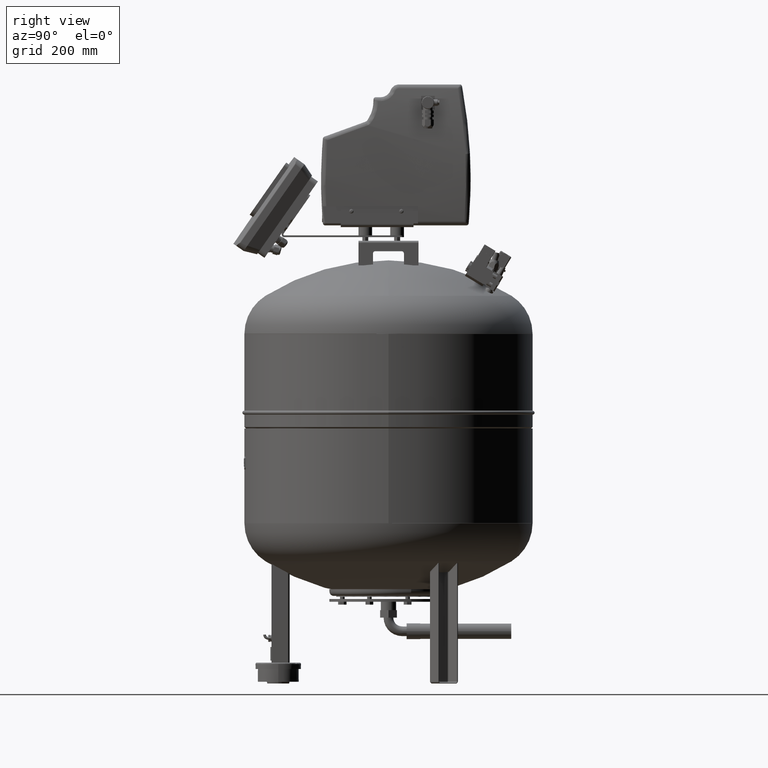
[diagram: clean part render]
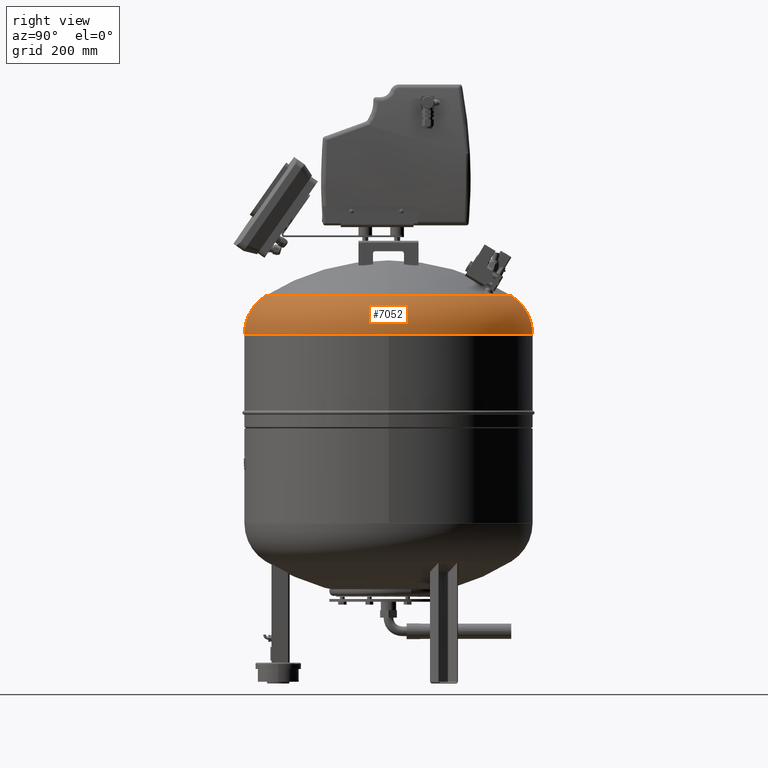
[diagram: same view with one face highlighted and labeled with its STEP entity id]
A machine part, right view. The second image highlights one B-rep face of the part: STEP entity #7052.
In plain terms, the highlighted toroidal blend (fillet) surface has major radius 218 mm and minor (blend) radius 99 mm.
Its self-contained STEP definition (entity closure, byte-faithful):
#7016=AXIS2_PLACEMENT_3D('Torus Axis2P3D',#7013,#7014,#7015) ;
#7020=AXIS2_PLACEMENT_3D('Circle Axis2P3D',#7018,#7019,$) ;
#7027=AXIS2_PLACEMENT_3D('Circle Axis2P3D',#7025,#7026,$) ;
#7034=AXIS2_PLACEMENT_3D('Circle Axis2P3D',#7032,#7033,$) ;
#7041=AXIS2_PLACEMENT_3D('Circle Axis2P3D',#7039,#7040,$) ;
#6926=CARTESIAN_POINT('Vertex',(317.,8.83458498387E-014,769.240550627)) ;
#6930=CARTESIAN_POINT('Control Point',(317.,9.23705556488E-014,769.240550627)) ;
#6931=CARTESIAN_POINT('Control Point',(317.,-24.8971217797,769.240550627)) ;
#6932=CARTESIAN_POINT('Control Point',(314.555730785,-49.7942435594,769.240550627)) ;
#6933=CARTESIAN_POINT('Control Point',(309.667033544,-74.3713842655,769.240550627)) ;
#6934=CARTESIAN_POINT('Control Point',(295.128022106,-122.246029393,769.240550627)) ;
#6935=CARTESIAN_POINT('Control Point',(271.556169469,-166.379149188,769.240550627)) ;
#6936=CARTESIAN_POINT('Control Point',(257.634337584,-187.214643014,769.240550627)) ;
#6937=CARTESIAN_POINT('Control Point',(225.881208973,-225.881208973,769.240550627)) ;
#6938=CARTESIAN_POINT('Control Point',(187.214643014,-257.634337584,769.240550627)) ;
#6939=CARTESIAN_POINT('Control Point',(166.379149188,-271.556169469,769.240550627)) ;
#6940=CARTESIAN_POINT('Control Point',(122.246029393,-295.128022106,769.240550627)) ;
#6941=CARTESIAN_POINT('Control Point',(74.3713842655,-309.667033544,769.240550627)) ;
#6942=CARTESIAN_POINT('Control Point',(49.7942435594,-314.555730785,769.240550627)) ;
#6943=CARTESIAN_POINT('Control Point',(24.8971217797,-317.,769.240550627)) ;
#6944=CARTESIAN_POINT('Control Point',(3.47467852043E-014,-317.,769.240550627)) ;
#6945=CARTESIAN_POINT('Vertex',(3.8821303533E-014,-317.,769.240550627)) ;
#6970=CARTESIAN_POINT('Vertex',(2.33261531817E-030,317.,769.240550627)) ;
#6974=CARTESIAN_POINT('Control Point',(-1.06581410364E-013,317.,769.240550627)) ;
#6975=CARTESIAN_POINT('Control Point',(24.8971217797,317.,769.240550627)) ;
#6976=CARTESIAN_POINT('Control Point',(49.7942435594,314.555730785,769.240550627)) ;
#6977=CARTESIAN_POINT('Control Point',(74.3713842655,309.667033544,769.240550627)) ;
#6978=CARTESIAN_POINT('Control Point',(122.246029393,295.128022106,769.240550627)) ;
#6979=CARTESIAN_POINT('Control Point',(166.379149188,271.556169469,769.240550627)) ;
#6980=CARTESIAN_POINT('Control Point',(187.214643014,257.634337584,769.240550627)) ;
#6981=CARTESIAN_POINT('Control Point',(225.881208973,225.881208973,769.240550627)) ;
#6982=CARTESIAN_POINT('Control Point',(257.634337584,187.214643014,769.240550627)) ;
#6983=CARTESIAN_POINT('Control Point',(271.556169469,166.379149188,769.240550627)) ;
#6984=CARTESIAN_POINT('Control Point',(295.128022106,122.246029393,769.240550627)) ;
#6985=CARTESIAN_POINT('Control Point',(309.667033544,74.3713842655,769.240550627)) ;
#6986=CARTESIAN_POINT('Control Point',(314.555730785,49.7942435594,769.240550627)) ;
#6987=CARTESIAN_POINT('Control Point',(317.,24.8971217797,769.240550627)) ;
#6988=CARTESIAN_POINT('Control Point',(317.,7.81597009336E-014,769.240550627)) ;
#7013=CARTESIAN_POINT('Axis2P3D Location',(0.,4.952455E-014,769.240550627)) ;
#7018=CARTESIAN_POINT('Axis2P3D Location',(0.,218.,769.240550627)) ;
#7022=CARTESIAN_POINT('Vertex',(-5.8221616869E-014,270.63902439,853.086439681)) ;
#7025=CARTESIAN_POINT('Axis2P3D Location',(8.06582611976E-015,2.38541500692E-014,853.086439681)) ;
#7029=CARTESIAN_POINT('Vertex',(270.63902439,1.558363E-013,853.086439681)) ;
#7032=CARTESIAN_POINT('Axis2P3D Location',(8.06582611976E-015,2.38541500692E-014,853.086439681)) ;
#7036=CARTESIAN_POINT('Vertex',(4.12095476142E-014,-270.63902439,853.086439681)) ;
#7039=CARTESIAN_POINT('Axis2P3D Location',(2.66973002214E-014,-218.,769.240550627)) ;
#7014=DIRECTION('Axis2P3D Direction',(-9.619823E-017,3.061617E-016,-1.)) ;
#7015=DIRECTION('Axis2P3D XDirection',(2.57397591591E-032,1.,0.)) ;
#7019=DIRECTION('Axis2P3D Direction',(-1.,0.,9.619823E-017)) ;
#7026=DIRECTION('Axis2P3D Direction',(-9.619823E-017,0.,-1.)) ;
#7033=DIRECTION('Axis2P3D Direction',(-9.619823E-017,0.,-1.)) ;
#7040=DIRECTION('Axis2P3D Direction',(1.,1.22464679915E-016,-9.619823E-017)) ;
#7045=ORIENTED_EDGE('',*,*,#7024,.T.) ;
#7046=ORIENTED_EDGE('',*,*,#7031,.T.) ;
#7047=ORIENTED_EDGE('',*,*,#7038,.T.) ;
#7048=ORIENTED_EDGE('',*,*,#7043,.F.) ;
#7049=ORIENTED_EDGE('',*,*,#6947,.F.) ;
#7050=ORIENTED_EDGE('',*,*,#6989,.F.) ;
#7052=ADVANCED_FACE('2AE',(#7051),#7017,.T.) ;
#6929=B_SPLINE_CURVE_WITH_KNOTS('',5,(#6930,#6931,#6932,#6933,#6934,#6935,#6936,#6937,#6938,#6939,#6940,#6941,#6942,#6943,#6944),.UNSPECIFIED.,.F.,.U.,(6,3,3,3,6),(-248.971217797,-124.485608898,0.,124.485608898,248.971217797),.UNSPECIFIED.) ;
#6973=B_SPLINE_CURVE_WITH_KNOTS('',5,(#6974,#6975,#6976,#6977,#6978,#6979,#6980,#6981,#6982,#6983,#6984,#6985,#6986,#6987,#6988),.UNSPECIFIED.,.F.,.U.,(6,3,3,3,6),(-248.971217797,-124.485608898,0.,124.485608898,248.971217797),.UNSPECIFIED.) ;
#7021=CIRCLE('generated circle',#7020,99.) ;
#7028=CIRCLE('generated circle',#7027,270.63902439) ;
#7035=CIRCLE('generated circle',#7034,270.63902439) ;
#7042=CIRCLE('generated circle',#7041,99.) ;
#7017=TOROIDAL_SURFACE('homeo Torus',#7016,218.,99.) ;
#6947=EDGE_CURVE('',#6927,#6946,#6929,.T.) ;
#6989=EDGE_CURVE('',#6971,#6927,#6973,.T.) ;
#7024=EDGE_CURVE('',#6971,#7023,#7021,.F.) ;
#7031=EDGE_CURVE('',#7023,#7030,#7028,.T.) ;
#7038=EDGE_CURVE('',#7030,#7037,#7035,.T.) ;
#7043=EDGE_CURVE('',#6946,#7037,#7042,.F.) ;
#7044=EDGE_LOOP('',(#7045,#7046,#7047,#7048,#7049,#7050)) ;
#7051=FACE_OUTER_BOUND('',#7044,.T.) ;
#6927=VERTEX_POINT('',#6926) ;
#6946=VERTEX_POINT('',#6945) ;
#6971=VERTEX_POINT('',#6970) ;
#7023=VERTEX_POINT('',#7022) ;
#7030=VERTEX_POINT('',#7029) ;
#7037=VERTEX_POINT('',#7036) ;